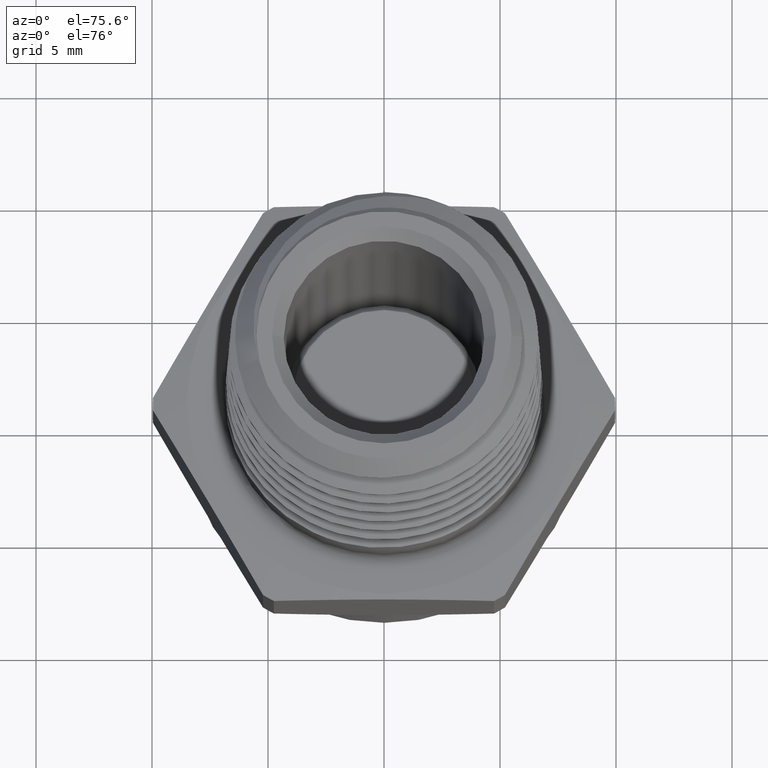
[diagram: clean part render]
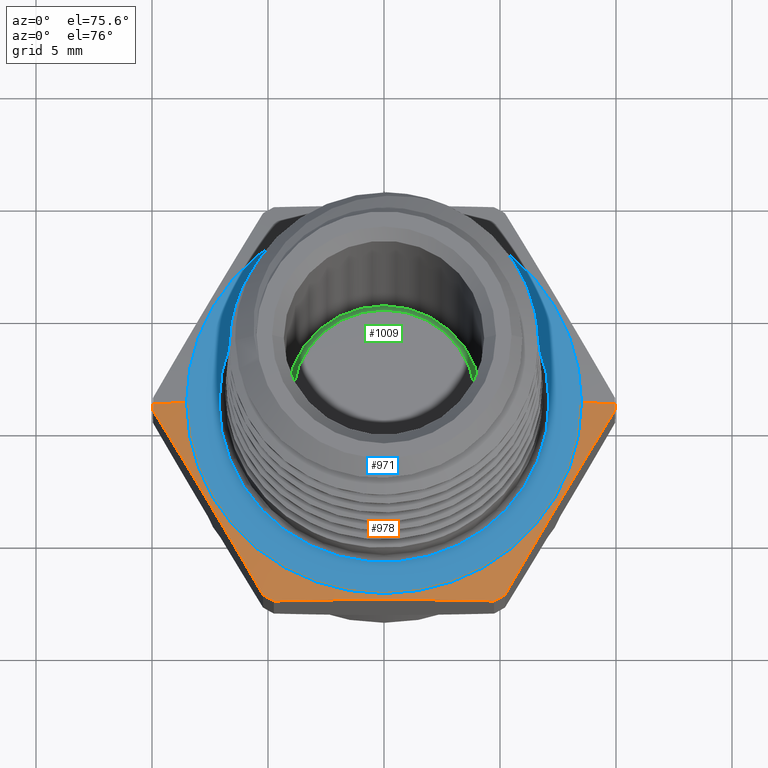
[diagram: same view with three faces highlighted in distinct colors, each labeled with its STEP entity id]
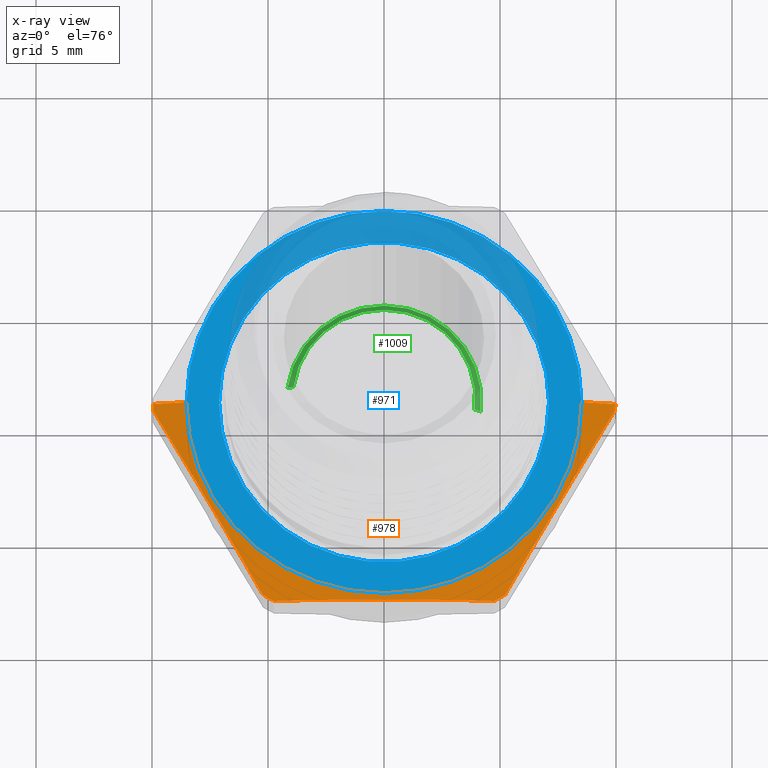
[diagram: x-ray of the same camera — body ghosted, the three highlighted faces saturated]
A machine part, auxiliary view with three faces highlighted in distinct colors.
The next image is the same camera in x-ray (body ghosted, the three faces saturated) — at least one of them is partly hidden behind the body in this view.
Their STEP definitions:

[orange] entity #978 — the highlighted conical surface has half-angle 78 deg.
#62 = DIRECTION ( 'NONE',  ( 0.9781476007338069100, 1.197885328332319900E-016, -0.2079116908177532600 ) ) ;
#63 = CARTESIAN_POINT ( 'NONE',  ( 0.3350000000000000200, 4.102566777143633400E-017, 0.1099999999999999300 ) ) ;
#94 = DIRECTION ( 'NONE',  ( -0.9781476007338069100, 0.0000000000000000000, -0.2079116908177530400 ) ) ;
#95 = CARTESIAN_POINT ( 'NONE',  ( -0.3350000000000000200, 0.0000000000000000000, 0.1100000000000000000 ) ) ;
#103 = CARTESIAN_POINT ( 'NONE',  ( 1.197769129782269500E-017, 0.0000000000000000000, 0.09780527174171400900 ) ) ;
#104 = DIRECTION ( 'NONE',  ( -1.224646799147351200E-016, -0.0000000000000000000, -1.000000000000000000 ) ) ;
#105 = DIRECTION ( 'NONE',  ( -1.000000000000000000, 0.0000000000000000000, 1.305449698402467100E-016 ) ) ;
#617 = CARTESIAN_POINT ( 'NONE',  ( -0.1868971368724248500, -0.3449999999999998600, 0.09780527174171402300 ) ) ;
#620 = CARTESIAN_POINT ( 'NONE',  ( 0.3922273327418436800, -0.01064233157390311600, 0.09780527174171395300 ) ) ;
#624 = CARTESIAN_POINT ( 'NONE',  ( 0.2053301958694190600, -0.3343576684260970400, 0.09780527174171399500 ) ) ;
#626 = CARTESIAN_POINT ( 'NONE',  ( -0.2053301958694185900, -0.3343576684260973200, 0.09780527174171402300 ) ) ;
#630 = CARTESIAN_POINT ( 'NONE',  ( 0.1868971368724249800, -0.3449999999999998600, 0.09780527174171399500 ) ) ;
#896 = EDGE_CURVE ( 'NONE', #1474, #1485, #1042, .T. ) ;
#904 = EDGE_CURVE ( 'NONE', #1461, #1488, #1050, .T. ) ;
#905 = EDGE_CURVE ( 'NONE', #1489, #1488, #1051, .T. ) ;
#978 = ADVANCED_FACE ( 'NONE', ( #1134 ), #1141, .T. ) ;
#1042 = LINE ( 'NONE', #63, #1046 ) ;
#1046 = VECTOR ( 'NONE', #62, 39.37007874015748100 ) ;
#1050 = LINE ( 'NONE', #95, #1052 ) ;
#1051 = CIRCLE ( 'NONE', #1147, 0.3923716857408416900 ) ;
#1052 = VECTOR ( 'NONE', #94, 39.37007874015748900 ) ;
#1134 = FACE_OUTER_BOUND ( 'NONE', #1594, .T. ) ;
#1141 = CONICAL_SURFACE ( 'NONE', #1778, 0.3350000000000000200, 1.361356816555583400 ) ;
#1147 = AXIS2_PLACEMENT_3D ( 'NONE', #103, #104, #105 ) ;
#1238 = ORIENTED_EDGE ( 'NONE', *, *, #896, .F. ) ;
#1239 = ORIENTED_EDGE ( 'NONE', *, *, #1735, .T. ) ;
#1240 = ORIENTED_EDGE ( 'NONE', *, *, #904, .T. ) ;
#1241 = ORIENTED_EDGE ( 'NONE', *, *, #905, .F. ) ;
#1242 = ORIENTED_EDGE ( 'NONE', *, *, #1539, .F. ) ;
#1243 = ORIENTED_EDGE ( 'NONE', *, *, #1739, .F. ) ;
#1244 = ORIENTED_EDGE ( 'NONE', *, *, #1540, .F. ) ;
#1245 = ORIENTED_EDGE ( 'NONE', *, *, #1744, .F. ) ;
#1246 = ORIENTED_EDGE ( 'NONE', *, *, #1541, .F. ) ;
#1247 = ORIENTED_EDGE ( 'NONE', *, *, #1747, .F. ) ;
#1347 = VERTEX_POINT ( 'NONE', #617 ) ;
#1350 = VERTEX_POINT ( 'NONE', #620 ) ;
#1354 = VERTEX_POINT ( 'NONE', #624 ) ;
#1356 = VERTEX_POINT ( 'NONE', #626 ) ;
#1360 = VERTEX_POINT ( 'NONE', #630 ) ;
#1461 = VERTEX_POINT ( 'NONE', #4055 ) ;
#1474 = VERTEX_POINT ( 'NONE', #4068 ) ;
#1485 = VERTEX_POINT ( 'NONE', #4079 ) ;
#1488 = VERTEX_POINT ( 'NONE', #4082 ) ;
#1489 = VERTEX_POINT ( 'NONE', #4083 ) ;
#1539 = EDGE_CURVE ( 'NONE', #1356, #1489, #3993, .T. ) ;
#1540 = EDGE_CURVE ( 'NONE', #1360, #1347, #3994, .T. ) ;
#1541 = EDGE_CURVE ( 'NONE', #1350, #1354, #3995, .T. ) ;
#1594 = EDGE_LOOP ( 'NONE', ( #1238, #1239, #1240, #1241, #1242, #1243, #1244, #1245, #1246, #1247 ) ) ;
#1735 = EDGE_CURVE ( 'NONE', #1474, #1461, #4701, .T. ) ;
#1739 = EDGE_CURVE ( 'NONE', #1347, #1356, #4705, .T. ) ;
#1744 = EDGE_CURVE ( 'NONE', #1354, #1360, #4713, .T. ) ;
#1747 = EDGE_CURVE ( 'NONE', #1485, #1350, #4718, .T. ) ;
#1778 = AXIS2_PLACEMENT_3D ( 'NONE', #1837, #1838, #1836 ) ;
#1836 = DIRECTION ( 'NONE',  ( -1.000000000000000000, 0.0000000000000000000, 1.019346266292635500E-016 ) ) ;
#1837 = CARTESIAN_POINT ( 'NONE',  ( 1.347111479062086200E-017, 0.0000000000000000000, 0.1099999999999999700 ) ) ;
#1838 = DIRECTION ( 'NONE',  ( -1.224646799147351200E-016, -0.0000000000000000000, -1.000000000000000000 ) ) ;
#2323 = AXIS2_PLACEMENT_3D ( 'NONE', #5349, #5350, #5351 ) ;
#2326 = AXIS2_PLACEMENT_3D ( 'NONE', #5364, #5365, #5366 ) ;
#2328 = AXIS2_PLACEMENT_3D ( 'NONE', #5387, #5388, #5389 ) ;
#2329 = AXIS2_PLACEMENT_3D ( 'NONE', #5393, #5394, #5395 ) ;
#3993 = B_SPLINE_CURVE_WITH_KNOTS ( 'NONE', 3,
 ( #4159, #4160, #4172, #4173, #4174 ),
 .UNSPECIFIED., .F., .F.,
 ( 4, 1, 4 ),
 ( 1.975061656131820100E-006, 0.004749162338215729200, 0.009496349614775325500 ),
 .UNSPECIFIED. ) ;
#3994 = B_SPLINE_CURVE_WITH_KNOTS ( 'NONE', 3,
 ( #4171, #4170, #4178, #4179, #4180, #4181, #4182, #4183 ),
 .UNSPECIFIED., .F., .F.,
 ( 4, 2, 2, 4 ),
 ( 0.01944090660399456400, 0.02420207789306992600, 0.02658266353760760700, 0.02896324918214528800 ),
 .UNSPECIFIED. ) ;
#3995 = B_SPLINE_CURVE_WITH_KNOTS ( 'NONE', 3,
 ( #4175, #4177, #4185, #4186, #4187 ),
 .UNSPECIFIED., .F., .F.,
 ( 4, 1, 4 ),
 ( 1.975061655729346100E-006, 0.004749162338215314600, 0.009496349614774898800 ),
 .UNSPECIFIED. ) ;
#4055 = CARTESIAN_POINT ( 'NONE',  ( -0.3350000000000000200, 0.0000000000000000000, 0.1100000000000000000 ) ) ;
#4068 = CARTESIAN_POINT ( 'NONE',  ( 0.3350000000000000200, 4.102566777143634000E-017, 0.1099999999999999300 ) ) ;
#4079 = CARTESIAN_POINT ( 'NONE',  ( 0.3923716857408418000, 4.805167290185730100E-017, 0.09780527174171395300 ) ) ;
#4082 = CARTESIAN_POINT ( 'NONE',  ( -0.3923716857408416900, 0.0000000000000000000, 0.09780527174171406400 ) ) ;
#4083 = CARTESIAN_POINT ( 'NONE',  ( -0.3922273327418436800, -0.01064233157390256700, 0.09780527174171406400 ) ) ;
#4159 = CARTESIAN_POINT ( 'NONE',  ( -0.2053301958694185900, -0.3343576684260973200, 0.09780527174171402300 ) ) ;
#4160 = CARTESIAN_POINT ( 'NONE',  ( -0.2364797186814894800, -0.2804051122840648900, 0.1041128245892189400 ) ) ;
#4170 = CARTESIAN_POINT ( 'NONE',  ( 0.1247306864571027700, -0.3449999999999998600, 0.1040993998043193400 ) ) ;
#4171 = CARTESIAN_POINT ( 'NONE',  ( 0.1868971368724249800, -0.3449999999999998600, 0.09780527174171399500 ) ) ;
#4172 = CARTESIAN_POINT ( 'NONE',  ( -0.2987787643056311600, -0.1725000000000000100, 0.1116360441773808100 ) ) ;
#4173 = CARTESIAN_POINT ( 'NONE',  ( -0.3610778099297729000, -0.06459488771593505100, 0.1041128245892190400 ) ) ;
#4174 = CARTESIAN_POINT ( 'NONE',  ( -0.3922273327418436800, -0.01064233157390256700, 0.09780527174171406400 ) ) ;
#4175 = CARTESIAN_POINT ( 'NONE',  ( 0.3922273327418436800, -0.01064233157390311600, 0.09780527174171395300 ) ) ;
#4177 = CARTESIAN_POINT ( 'NONE',  ( 0.3610778099297726800, -0.06459488771593541200, 0.1041128245892188600 ) ) ;
#4178 = CARTESIAN_POINT ( 'NONE',  ( 0.06250744979095991500, -0.3449999999999997500, 0.1078667552690535900 ) ) ;
#4179 = CARTESIAN_POINT ( 'NONE',  ( -0.03095414709760130300, -0.3449999999999998600, 0.1078782555092329000 ) ) ;
#4180 = CARTESIAN_POINT ( 'NONE',  ( -0.06212850552103411900, -0.3449999999999998600, 0.1069702373852710900 ) ) ;
#4181 = CARTESIAN_POINT ( 'NONE',  ( -0.1245142243429588300, -0.3449999999999999200, 0.1035077537086995000 ) ) ;
#4182 = CARTESIAN_POINT ( 'NONE',  ( -0.1557582213858599300, -0.3449999999999998600, 0.1009579742121574500 ) ) ;
#4183 = CARTESIAN_POINT ( 'NONE',  ( -0.1868971368724248500, -0.3449999999999998600, 0.09780527174171402300 ) ) ;
#4185 = CARTESIAN_POINT ( 'NONE',  ( 0.2987787643056311100, -0.1725000000000001000, 0.1116360441773807200 ) ) ;
#4186 = CARTESIAN_POINT ( 'NONE',  ( 0.2364797186814897900, -0.2804051122840648400, 0.1041128245892189000 ) ) ;
#4187 = CARTESIAN_POINT ( 'NONE',  ( 0.2053301958694190600, -0.3343576684260970400, 0.09780527174171399500 ) ) ;
#4701 = CIRCLE ( 'NONE', #2323, 0.3350000000000000200 ) ;
#4705 = CIRCLE ( 'NONE', #2326, 0.3923716857408416900 ) ;
#4713 = CIRCLE ( 'NONE', #2328, 0.3923716857408416900 ) ;
#4718 = CIRCLE ( 'NONE', #2329, 0.3923716857408416900 ) ;
#5349 = CARTESIAN_POINT ( 'NONE',  ( 1.347111479062086200E-017, 0.0000000000000000000, 0.1099999999999999700 ) ) ;
#5350 = DIRECTION ( 'NONE',  ( -1.224646799147351200E-016, -0.0000000000000000000, -1.000000000000000000 ) ) ;
#5351 = DIRECTION ( 'NONE',  ( -1.000000000000000000, 0.0000000000000000000, 1.019346266292635500E-016 ) ) ;
#5364 = CARTESIAN_POINT ( 'NONE',  ( 1.197769129782269500E-017, 0.0000000000000000000, 0.09780527174171400900 ) ) ;
#5365 = DIRECTION ( 'NONE',  ( -1.224646799147351200E-016, -0.0000000000000000000, -1.000000000000000000 ) ) ;
#5366 = DIRECTION ( 'NONE',  ( -1.000000000000000000, 0.0000000000000000000, 1.305449698402467100E-016 ) ) ;
#5387 = CARTESIAN_POINT ( 'NONE',  ( 1.197769129782269500E-017, 0.0000000000000000000, 0.09780527174171400900 ) ) ;
#5388 = DIRECTION ( 'NONE',  ( -1.224646799147351200E-016, -0.0000000000000000000, -1.000000000000000000 ) ) ;
#5389 = DIRECTION ( 'NONE',  ( -1.000000000000000000, 0.0000000000000000000, 1.305449698402467100E-016 ) ) ;
#5393 = CARTESIAN_POINT ( 'NONE',  ( 1.197769129782269500E-017, 0.0000000000000000000, 0.09780527174171400900 ) ) ;
#5394 = DIRECTION ( 'NONE',  ( -1.224646799147351200E-016, -0.0000000000000000000, -1.000000000000000000 ) ) ;
#5395 = DIRECTION ( 'NONE',  ( -1.000000000000000000, 0.0000000000000000000, 1.305449698402467100E-016 ) ) ;

[blue] entity #971 — the highlighted planar face has unit normal (0, 0, 1).
#64 = CARTESIAN_POINT ( 'NONE',  ( 1.347111479062086200E-017, 0.0000000000000000000, 0.1099999999999999700 ) ) ;
#65 = DIRECTION ( 'NONE',  ( -1.224646799147351200E-016, -0.0000000000000000000, -1.000000000000000000 ) ) ;
#66 = DIRECTION ( 'NONE',  ( -1.000000000000000000, 0.0000000000000000000, 1.019346266292635500E-016 ) ) ;
#895 = EDGE_CURVE ( 'NONE', #1461, #1474, #1040, .T. ) ;
#971 = ADVANCED_FACE ( 'NONE', ( #1095, #1096 ), #1814, .T. ) ;
#1040 = CIRCLE ( 'NONE', #1760, 0.3350000000000000200 ) ;
#1095 = FACE_OUTER_BOUND ( 'NONE', #1586, .T. ) ;
#1096 = FACE_BOUND ( 'NONE', #1585, .T. ) ;
#1208 = ORIENTED_EDGE ( 'NONE', *, *, #895, .F. ) ;
#1209 = ORIENTED_EDGE ( 'NONE', *, *, #1735, .F. ) ;
#1210 = ORIENTED_EDGE ( 'NONE', *, *, #1445, .T. ) ;
#1211 = ORIENTED_EDGE ( 'NONE', *, *, #1736, .T. ) ;
#1445 = EDGE_CURVE ( 'NONE', #1468, #1469, #2234, .T. ) ;
#1461 = VERTEX_POINT ( 'NONE', #4055 ) ;
#1468 = VERTEX_POINT ( 'NONE', #4062 ) ;
#1469 = VERTEX_POINT ( 'NONE', #4063 ) ;
#1474 = VERTEX_POINT ( 'NONE', #4068 ) ;
#1585 = EDGE_LOOP ( 'NONE', ( #1210, #1211 ) ) ;
#1586 = EDGE_LOOP ( 'NONE', ( #1208, #1209 ) ) ;
#1735 = EDGE_CURVE ( 'NONE', #1474, #1461, #4701, .T. ) ;
#1736 = EDGE_CURVE ( 'NONE', #1469, #1468, #4697, .T. ) ;
#1760 = AXIS2_PLACEMENT_3D ( 'NONE', #64, #65, #66 ) ;
#1779 = AXIS2_PLACEMENT_3D ( 'NONE', #1816, #1817, #1818 ) ;
#1814 = PLANE ( 'NONE',  #1779 ) ;
#1816 = CARTESIAN_POINT ( 'NONE',  ( -0.1991858428704206800, -0.3449999999999998600, 0.1100000000000000000 ) ) ;
#1817 = DIRECTION ( 'NONE',  ( -0.0000000000000000000, 0.0000000000000000000, 1.000000000000000000 ) ) ;
#1818 = DIRECTION ( 'NONE',  ( 1.000000000000000000, 0.0000000000000000000, 0.0000000000000000000 ) ) ;
#2234 = CIRCLE ( 'NONE', #2295, 0.2800000000000000300 ) ;
#2295 = AXIS2_PLACEMENT_3D ( 'NONE', #4024, #4025, #4026 ) ;
#2323 = AXIS2_PLACEMENT_3D ( 'NONE', #5349, #5350, #5351 ) ;
#2324 = AXIS2_PLACEMENT_3D ( 'NONE', #5354, #5355, #5356 ) ;
#4024 = CARTESIAN_POINT ( 'NONE',  ( 0.0000000000000000000, 0.0000000000000000000, 0.1100000000000000000 ) ) ;
#4025 = DIRECTION ( 'NONE',  ( 0.0000000000000000000, -0.0000000000000000000, -1.000000000000000000 ) ) ;
#4026 = DIRECTION ( 'NONE',  ( 1.000000000000000000, 0.0000000000000000000, 0.0000000000000000000 ) ) ;
#4055 = CARTESIAN_POINT ( 'NONE',  ( -0.3350000000000000200, 0.0000000000000000000, 0.1100000000000000000 ) ) ;
#4062 = CARTESIAN_POINT ( 'NONE',  ( 0.2800000000000000300, 0.0000000000000000000, 0.1100000000000000300 ) ) ;
#4063 = CARTESIAN_POINT ( 'NONE',  ( -0.2800000000000000300, 3.429011037612588800E-017, 0.1100000000000000300 ) ) ;
#4068 = CARTESIAN_POINT ( 'NONE',  ( 0.3350000000000000200, 4.102566777143634000E-017, 0.1099999999999999300 ) ) ;
#4697 = CIRCLE ( 'NONE', #2324, 0.2800000000000000300 ) ;
#4701 = CIRCLE ( 'NONE', #2323, 0.3350000000000000200 ) ;
#5349 = CARTESIAN_POINT ( 'NONE',  ( 1.347111479062086200E-017, 0.0000000000000000000, 0.1099999999999999700 ) ) ;
#5350 = DIRECTION ( 'NONE',  ( -1.224646799147351200E-016, -0.0000000000000000000, -1.000000000000000000 ) ) ;
#5351 = DIRECTION ( 'NONE',  ( -1.000000000000000000, 0.0000000000000000000, 1.019346266292635500E-016 ) ) ;
#5354 = CARTESIAN_POINT ( 'NONE',  ( 0.0000000000000000000, 0.0000000000000000000, 0.1100000000000000000 ) ) ;
#5355 = DIRECTION ( 'NONE',  ( 0.0000000000000000000, -0.0000000000000000000, -1.000000000000000000 ) ) ;
#5356 = DIRECTION ( 'NONE',  ( 1.000000000000000000, 0.0000000000000000000, 0.0000000000000000000 ) ) ;

[green] entity #1009 — the highlighted conical surface has half-angle 45 deg.
#579 = DIRECTION ( 'NONE',  ( -1.000000000000000000, 0.0000000000000000000, 0.0000000000000000000 ) ) ;
#580 = CARTESIAN_POINT ( 'NONE',  ( -1.333458843753816200E-017, 0.0000000000000000000, 0.1968503937007874100 ) ) ;
#581 = DIRECTION ( 'NONE',  ( 0.0000000000000000000, 0.0000000000000000000, -1.000000000000000000 ) ) ;
#631 = CARTESIAN_POINT ( 'NONE',  ( 0.1550000000000000000, 1.959434878635765400E-017, 0.1968503937007874100 ) ) ;
#636 = CARTESIAN_POINT ( 'NONE',  ( -0.1550000000000000000, 0.0000000000000000000, 0.1968503937007874100 ) ) ;
#637 = CARTESIAN_POINT ( 'NONE',  ( -0.1650000000000000100, 0.0000000000000000000, 0.1868503937007872700 ) ) ;
#638 = CARTESIAN_POINT ( 'NONE',  ( 0.1650000000000000100, 2.020667218593132900E-017, 0.1868503937007872700 ) ) ;
#1009 = ADVANCED_FACE ( 'NONE', ( #2157 ), #2173, .T. ) ;
#1361 = VERTEX_POINT ( 'NONE', #631 ) ;
#1366 = VERTEX_POINT ( 'NONE', #636 ) ;
#1367 = VERTEX_POINT ( 'NONE', #637 ) ;
#1368 = VERTEX_POINT ( 'NONE', #638 ) ;
#1617 = EDGE_LOOP ( 'NONE', ( #1689, #1690, #1691, #1692 ) ) ;
#1689 = ORIENTED_EDGE ( 'NONE', *, *, #1708, .F. ) ;
#1690 = ORIENTED_EDGE ( 'NONE', *, *, #1709, .T. ) ;
#1691 = ORIENTED_EDGE ( 'NONE', *, *, #1710, .F. ) ;
#1692 = ORIENTED_EDGE ( 'NONE', *, *, #1711, .F. ) ;
#1708 = EDGE_CURVE ( 'NONE', #1361, #1366, #4681, .T. ) ;
#1709 = EDGE_CURVE ( 'NONE', #1361, #1368, #4682, .T. ) ;
#1710 = EDGE_CURVE ( 'NONE', #1367, #1368, #4684, .T. ) ;
#1711 = EDGE_CURVE ( 'NONE', #1366, #1367, #4687, .T. ) ;
#1813 = AXIS2_PLACEMENT_3D ( 'NONE', #580, #581, #579 ) ;
#2157 = FACE_OUTER_BOUND ( 'NONE', #1617, .T. ) ;
#2173 = CONICAL_SURFACE ( 'NONE', #1813, 0.1550000000000000000, 0.7853981633974431700 ) ;
#2317 = AXIS2_PLACEMENT_3D ( 'NONE', #4827, #4828, #4829 ) ;
#2318 = AXIS2_PLACEMENT_3D ( 'NONE', #4832, #4833, #4834 ) ;
#4681 = CIRCLE ( 'NONE', #2317, 0.1550000000000000000 ) ;
#4682 = LINE ( 'NONE', #4826, #4686 ) ;
#4684 = CIRCLE ( 'NONE', #2318, 0.1650000000000000100 ) ;
#4686 = VECTOR ( 'NONE', #4824, 39.37007874015748100 ) ;
#4687 = LINE ( 'NONE', #4830, #4689 ) ;
#4689 = VECTOR ( 'NONE', #4825, 39.37007874015748100 ) ;
#4824 = DIRECTION ( 'NONE',  ( 0.7071067811865439100, 8.659560562354888500E-017, -0.7071067811865511300 ) ) ;
#4825 = DIRECTION ( 'NONE',  ( -0.7071067811865439100, 0.0000000000000000000, -0.7071067811865511300 ) ) ;
#4826 = CARTESIAN_POINT ( 'NONE',  ( 0.1550000000000000000, 1.898202538678397300E-017, 0.1968503937007874100 ) ) ;
#4827 = CARTESIAN_POINT ( 'NONE',  ( -1.333458843753816200E-017, 0.0000000000000000000, 0.1968503937007874100 ) ) ;
#4828 = DIRECTION ( 'NONE',  ( -0.0000000000000000000, 0.0000000000000000000, 1.000000000000000000 ) ) ;
#4829 = DIRECTION ( 'NONE',  ( 1.000000000000000000, 0.0000000000000000000, 0.0000000000000000000 ) ) ;
#4830 = CARTESIAN_POINT ( 'NONE',  ( -0.1550000000000000000, 0.0000000000000000000, 0.1968503937007874100 ) ) ;
#4832 = CARTESIAN_POINT ( 'NONE',  ( -1.333458843753816200E-017, 0.0000000000000000000, 0.1868503937007872700 ) ) ;
#4833 = DIRECTION ( 'NONE',  ( 0.0000000000000000000, 0.0000000000000000000, -1.000000000000000000 ) ) ;
#4834 = DIRECTION ( 'NONE',  ( 1.000000000000000000, 0.0000000000000000000, 0.0000000000000000000 ) ) ;